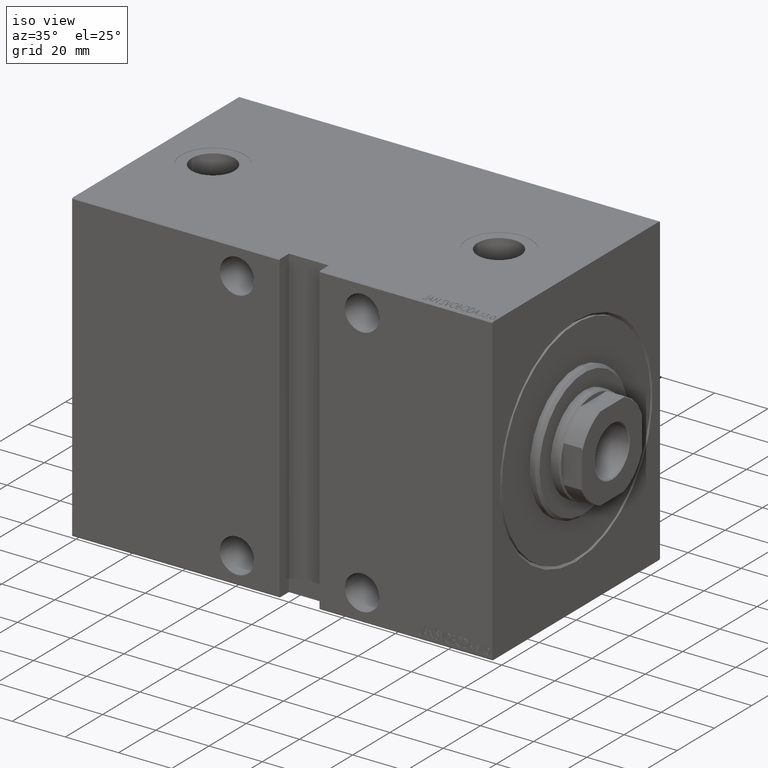
[diagram: clean part render]
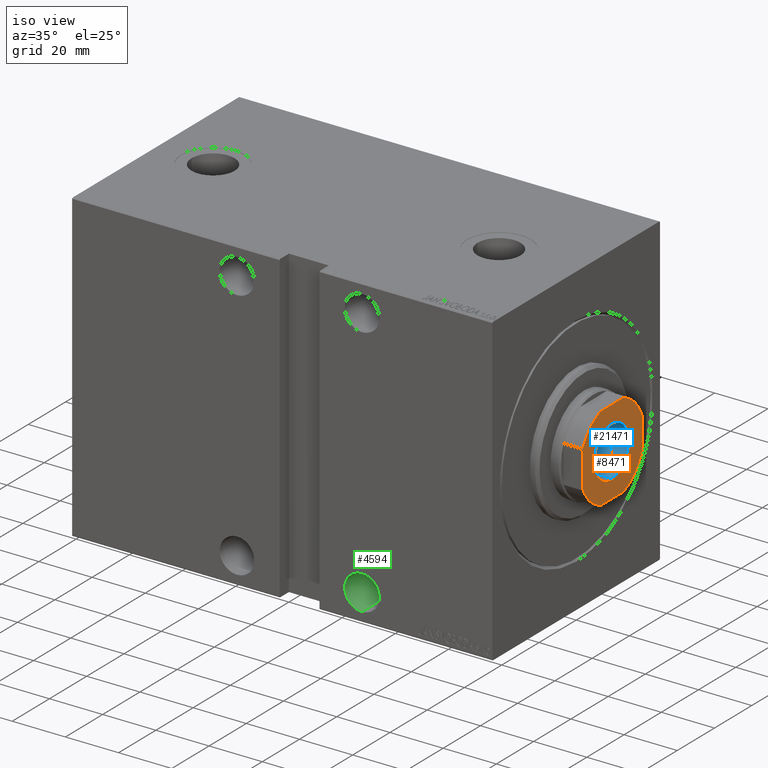
[diagram: same view with three faces highlighted in distinct colors, each labeled with its STEP entity id]
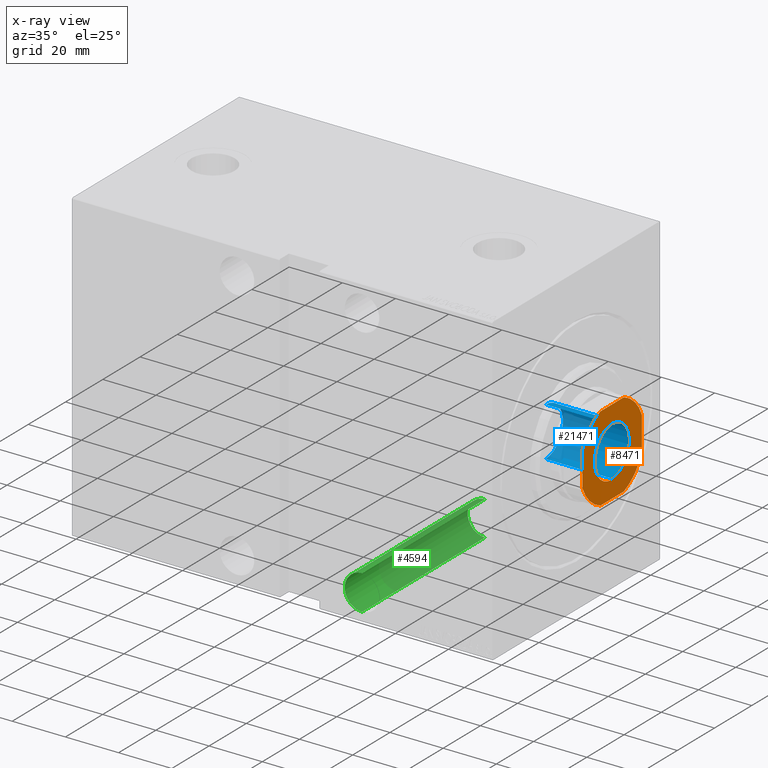
[diagram: x-ray of the same camera — body ghosted, the three highlighted faces saturated]
A machine part, iso view with three faces highlighted in distinct colors.
The next image is the same camera in x-ray (body ghosted, the three faces saturated) — at least one of them is partly hidden behind the body in this view.
Their STEP definitions:

[orange] entity #8471 — the highlighted planar face has unit normal (1, 0, -0).
#259 = LINE ( 'NONE', #13765, #41469 ) ;
#600 = VERTEX_POINT ( 'NONE', #33278 ) ;
#1123 = VECTOR ( 'NONE', #16545, 1000.000000000000000 ) ;
#1313 = CARTESIAN_POINT ( 'NONE',  ( -9.550000000000057554, 1.169537693185729263E-15, 154.0000000000000284 ) ) ;
#1662 = DIRECTION ( 'NONE',  ( -0.000000000000000000, 0.000000000000000000, 1.000000000000000000 ) ) ;
#3144 = ORIENTED_EDGE ( 'NONE', *, *, #3956, .T. ) ;
#3956 = EDGE_CURVE ( 'NONE', #24542, #11498, #24050, .T. ) ;
#4098 = DIRECTION ( 'NONE',  ( 1.084202172485504434E-16, -1.000000000000000000, 0.000000000000000000 ) ) ;
#4100 = VERTEX_POINT ( 'NONE', #39329 ) ;
#4376 = EDGE_CURVE ( 'NONE', #11498, #24542, #38911, .T. ) ;
#4771 = DIRECTION ( 'NONE',  ( 1.000000000000000000, 0.000000000000000000, 0.000000000000000000 ) ) ;
#5475 = EDGE_CURVE ( 'NONE', #25208, #40008, #33985, .T. ) ;
#5571 = EDGE_CURVE ( 'NONE', #40008, #40895, #7847, .T. ) ;
#6075 = ORIENTED_EDGE ( 'NONE', *, *, #5571, .T. ) ;
#6341 = AXIS2_PLACEMENT_3D ( 'NONE', #37473, #17092, #19763 ) ;
#6634 = CARTESIAN_POINT ( 'NONE',  ( -16.00000000000000000, -6.311893535223783047, 154.0000000000000284 ) ) ;
#7511 = ORIENTED_EDGE ( 'NONE', *, *, #4376, .T. ) ;
#7847 = LINE ( 'NONE', #41752, #31139 ) ;
#7855 = AXIS2_PLACEMENT_3D ( 'NONE', #40066, #22779, #33206 ) ;
#8471 = ADVANCED_FACE ( 'NONE', ( #13470, #16576 ), #26755, .T. ) ;
#9680 = CARTESIAN_POINT ( 'NONE',  ( 16.00000000000000000, 16.00000000000000355, 154.0000000000000284 ) ) ;
#11400 = DIRECTION ( 'NONE',  ( -1.000000000000000000, -1.084202172485504434E-16, -0.000000000000000000 ) ) ;
#11498 = VERTEX_POINT ( 'NONE', #1313 ) ;
#11581 = CARTESIAN_POINT ( 'NONE',  ( -6.311893535223748408, 16.00000000000000000, 154.0000000000000284 ) ) ;
#13227 = DIRECTION ( 'NONE',  ( 1.000000000000000000, 0.000000000000000000, 0.000000000000000000 ) ) ;
#13470 = FACE_BOUND ( 'NONE', #33806, .T. ) ;
#13765 = CARTESIAN_POINT ( 'NONE',  ( -15.99999999999999645, -16.00000000000000000, 154.0000000000000284 ) ) ;
#14339 = VERTEX_POINT ( 'NONE', #6634 ) ;
#14482 = CARTESIAN_POINT ( 'NONE',  ( 0.000000000000000000, 0.000000000000000000, 154.0000000000000284 ) ) ;
#14697 = CIRCLE ( 'NONE', #39457, 17.19999999999999218 ) ;
#14719 = DIRECTION ( 'NONE',  ( -0.000000000000000000, 0.000000000000000000, 1.000000000000000000 ) ) ;
#15593 = CARTESIAN_POINT ( 'NONE',  ( 0.000000000000000000, 0.000000000000000000, 154.0000000000000284 ) ) ;
#16115 = CIRCLE ( 'NONE', #18947, 17.19999999999997797 ) ;
#16545 = DIRECTION ( 'NONE',  ( -3.252606517456513302E-16, 1.000000000000000000, -0.000000000000000000 ) ) ;
#16576 = FACE_OUTER_BOUND ( 'NONE', #35273, .T. ) ;
#17092 = DIRECTION ( 'NONE',  ( 0.000000000000000000, -0.000000000000000000, -1.000000000000000000 ) ) ;
#17762 = ORIENTED_EDGE ( 'NONE', *, *, #38035, .T. ) ;
#18039 = DIRECTION ( 'NONE',  ( 1.000000000000000000, 0.000000000000000000, 0.000000000000000000 ) ) ;
#18242 = CARTESIAN_POINT ( 'NONE',  ( 9.550000000000057554, 0.000000000000000000, 154.0000000000000284 ) ) ;
#18561 = VERTEX_POINT ( 'NONE', #32071 ) ;
#18947 = AXIS2_PLACEMENT_3D ( 'NONE', #42370, #43020, #32616 ) ;
#19763 = DIRECTION ( 'NONE',  ( 1.000000000000000000, 0.000000000000000000, 0.000000000000000000 ) ) ;
#19870 = LINE ( 'NONE', #9680, #1123 ) ;
#21704 = ORIENTED_EDGE ( 'NONE', *, *, #5475, .T. ) ;
#22779 = DIRECTION ( 'NONE',  ( -0.000000000000000000, 0.000000000000000000, 1.000000000000000000 ) ) ;
#24050 = CIRCLE ( 'NONE', #37495, 9.550000000000057554 ) ;
#24216 = EDGE_CURVE ( 'NONE', #4100, #25208, #19870, .T. ) ;
#24542 = VERTEX_POINT ( 'NONE', #18242 ) ;
#25136 = CARTESIAN_POINT ( 'NONE',  ( -16.00000000000000000, 16.00000000000000000, 154.0000000000000284 ) ) ;
#25208 = VERTEX_POINT ( 'NONE', #36283 ) ;
#26290 = ORIENTED_EDGE ( 'NONE', *, *, #43134, .T. ) ;
#26755 = PLANE ( 'NONE',  #7855 ) ;
#27454 = ORIENTED_EDGE ( 'NONE', *, *, #24216, .T. ) ;
#29875 = EDGE_CURVE ( 'NONE', #14339, #32172, #14697, .T. ) ;
#30114 = EDGE_CURVE ( 'NONE', #32172, #600, #259, .T. ) ;
#30592 = ORIENTED_EDGE ( 'NONE', *, *, #34284, .T. ) ;
#31064 = CARTESIAN_POINT ( 'NONE',  ( 6.311893535223545015, 16.00000000000000355, 154.0000000000000284 ) ) ;
#31139 = VECTOR ( 'NONE', #11400, 1000.000000000000000 ) ;
#31152 = DIRECTION ( 'NONE',  ( 0.000000000000000000, -0.000000000000000000, -1.000000000000000000 ) ) ;
#31758 = DIRECTION ( 'NONE',  ( -0.000000000000000000, 0.000000000000000000, 1.000000000000000000 ) ) ;
#32014 = CARTESIAN_POINT ( 'NONE',  ( 0.000000000000000000, 0.000000000000000000, 154.0000000000000284 ) ) ;
#32071 = CARTESIAN_POINT ( 'NONE',  ( -16.00000000000000000, 6.311893535223752849, 154.0000000000000284 ) ) ;
#32172 = VERTEX_POINT ( 'NONE', #38043 ) ;
#32568 = AXIS2_PLACEMENT_3D ( 'NONE', #15593, #14719, #18039 ) ;
#32616 = DIRECTION ( 'NONE',  ( 1.000000000000000000, 0.000000000000000000, 0.000000000000000000 ) ) ;
#33206 = DIRECTION ( 'NONE',  ( 1.000000000000000000, 0.000000000000000000, 0.000000000000000000 ) ) ;
#33278 = CARTESIAN_POINT ( 'NONE',  ( 6.311893535223763507, -16.00000000000000000, 154.0000000000000284 ) ) ;
#33806 = EDGE_LOOP ( 'NONE', ( #3144, #7511 ) ) ;
#33985 = CIRCLE ( 'NONE', #32568, 17.19999999999990692 ) ;
#34284 = EDGE_CURVE ( 'NONE', #40895, #18561, #16115, .T. ) ;
#34440 = LINE ( 'NONE', #25136, #43809 ) ;
#35273 = EDGE_LOOP ( 'NONE', ( #27454, #21704, #6075, #30592, #17762, #40775, #40546, #26290 ) ) ;
#36155 = CIRCLE ( 'NONE', #43207, 17.19999999999998508 ) ;
#36283 = CARTESIAN_POINT ( 'NONE',  ( 16.00000000000000355, 6.311893535223527252, 154.0000000000000284 ) ) ;
#37364 = CARTESIAN_POINT ( 'NONE',  ( 0.000000000000000000, 0.000000000000000000, 154.0000000000000284 ) ) ;
#37473 = CARTESIAN_POINT ( 'NONE',  ( 0.000000000000000000, 0.000000000000000000, 154.0000000000000284 ) ) ;
#37495 = AXIS2_PLACEMENT_3D ( 'NONE', #37364, #31152, #13227 ) ;
#38035 = EDGE_CURVE ( 'NONE', #18561, #14339, #34440, .T. ) ;
#38043 = CARTESIAN_POINT ( 'NONE',  ( -6.311893535223781271, -16.00000000000000000, 154.0000000000000284 ) ) ;
#38631 = DIRECTION ( 'NONE',  ( 1.000000000000000000, 0.000000000000000000, 0.000000000000000000 ) ) ;
#38911 = CIRCLE ( 'NONE', #6341, 9.550000000000057554 ) ;
#39329 = CARTESIAN_POINT ( 'NONE',  ( 16.00000000000000711, -6.311893535223739526, 154.0000000000000284 ) ) ;
#39457 = AXIS2_PLACEMENT_3D ( 'NONE', #14482, #31758, #38631 ) ;
#40008 = VERTEX_POINT ( 'NONE', #31064 ) ;
#40066 = CARTESIAN_POINT ( 'NONE',  ( 0.000000000000000000, 0.000000000000000000, 154.0000000000000284 ) ) ;
#40546 = ORIENTED_EDGE ( 'NONE', *, *, #30114, .T. ) ;
#40775 = ORIENTED_EDGE ( 'NONE', *, *, #29875, .T. ) ;
#40794 = DIRECTION ( 'NONE',  ( 1.000000000000000000, 0.000000000000000000, 0.000000000000000000 ) ) ;
#40895 = VERTEX_POINT ( 'NONE', #11581 ) ;
#41469 = VECTOR ( 'NONE', #40794, 1000.000000000000000 ) ;
#41752 = CARTESIAN_POINT ( 'NONE',  ( -16.00000000000000000, 16.00000000000000000, 154.0000000000000284 ) ) ;
#42370 = CARTESIAN_POINT ( 'NONE',  ( 0.000000000000000000, 0.000000000000000000, 154.0000000000000284 ) ) ;
#43020 = DIRECTION ( 'NONE',  ( -0.000000000000000000, 0.000000000000000000, 1.000000000000000000 ) ) ;
#43134 = EDGE_CURVE ( 'NONE', #600, #4100, #36155, .T. ) ;
#43207 = AXIS2_PLACEMENT_3D ( 'NONE', #32014, #1662, #4771 ) ;
#43809 = VECTOR ( 'NONE', #4098, 1000.000000000000000 ) ;

[blue] entity #21471 — the highlighted cylindrical surface (edge-blend (fillet) strip) has radius 9.25 mm, axis along (1, 0, -0).
#1437 = CIRCLE ( 'NONE', #4959, 9.249999999999994671 ) ;
#2263 = LINE ( 'NONE', #15565, #40555 ) ;
#4327 = EDGE_CURVE ( 'NONE', #7809, #31507, #29297, .T. ) ;
#4959 = AXIS2_PLACEMENT_3D ( 'NONE', #6132, #42913, #9236 ) ;
#5528 = VERTEX_POINT ( 'NONE', #32218 ) ;
#5661 = FACE_OUTER_BOUND ( 'NONE', #19061, .T. ) ;
#5857 = VERTEX_POINT ( 'NONE', #21909 ) ;
#6132 = CARTESIAN_POINT ( 'NONE',  ( 0.000000000000000000, 0.000000000000000000, 153.6999999999999886 ) ) ;
#7809 = VERTEX_POINT ( 'NONE', #22065 ) ;
#8461 = VECTOR ( 'NONE', #38860, 1000.000000000000000 ) ;
#9236 = DIRECTION ( 'NONE',  ( 1.000000000000000000, 0.000000000000000000, 0.000000000000000000 ) ) ;
#11711 = CARTESIAN_POINT ( 'NONE',  ( 0.000000000000000000, 0.000000000000000000, 129.0000000000000284 ) ) ;
#15565 = CARTESIAN_POINT ( 'NONE',  ( -9.249999999999994671, 1.132798289211300909E-15, 154.0000000000000284 ) ) ;
#15635 = CYLINDRICAL_SURFACE ( 'NONE', #27936, 9.249999999999994671 ) ;
#17069 = ORIENTED_EDGE ( 'NONE', *, *, #17273, .F. ) ;
#17273 = EDGE_CURVE ( 'NONE', #5528, #5857, #2263, .T. ) ;
#18945 = DIRECTION ( 'NONE',  ( -0.000000000000000000, -0.000000000000000000, 1.000000000000000000 ) ) ;
#19061 = EDGE_LOOP ( 'NONE', ( #17069, #21912, #37163, #20118 ) ) ;
#20118 = ORIENTED_EDGE ( 'NONE', *, *, #41425, .T. ) ;
#21471 = ADVANCED_FACE ( 'NONE', ( #5661 ), #15635, .F. ) ;
#21909 = CARTESIAN_POINT ( 'NONE',  ( -9.249999999999994671, 1.132798289211300909E-15, 153.6999999999999886 ) ) ;
#21912 = ORIENTED_EDGE ( 'NONE', *, *, #25122, .F. ) ;
#22065 = CARTESIAN_POINT ( 'NONE',  ( 9.249999999999994671, 0.000000000000000000, 129.0000000000000284 ) ) ;
#23058 = AXIS2_PLACEMENT_3D ( 'NONE', #11711, #29194, #42719 ) ;
#25122 = EDGE_CURVE ( 'NONE', #7809, #5528, #40059, .T. ) ;
#25972 = CARTESIAN_POINT ( 'NONE',  ( 9.249999999999994671, 0.000000000000000000, 154.0000000000000284 ) ) ;
#27936 = AXIS2_PLACEMENT_3D ( 'NONE', #29135, #18945, #35570 ) ;
#29135 = CARTESIAN_POINT ( 'NONE',  ( 0.000000000000000000, 0.000000000000000000, 154.0000000000000284 ) ) ;
#29194 = DIRECTION ( 'NONE',  ( -0.000000000000000000, -0.000000000000000000, 1.000000000000000000 ) ) ;
#29297 = LINE ( 'NONE', #25972, #8461 ) ;
#31507 = VERTEX_POINT ( 'NONE', #35629 ) ;
#32218 = CARTESIAN_POINT ( 'NONE',  ( -9.249999999999994671, 1.132798289211300909E-15, 129.0000000000000284 ) ) ;
#35570 = DIRECTION ( 'NONE',  ( 1.000000000000000000, 0.000000000000000000, 0.000000000000000000 ) ) ;
#35629 = CARTESIAN_POINT ( 'NONE',  ( 9.249999999999994671, 0.000000000000000000, 153.6999999999999886 ) ) ;
#37163 = ORIENTED_EDGE ( 'NONE', *, *, #4327, .T. ) ;
#38860 = DIRECTION ( 'NONE',  ( -0.000000000000000000, -0.000000000000000000, 1.000000000000000000 ) ) ;
#40059 = CIRCLE ( 'NONE', #23058, 9.249999999999994671 ) ;
#40555 = VECTOR ( 'NONE', #42597, 1000.000000000000000 ) ;
#41425 = EDGE_CURVE ( 'NONE', #31507, #5857, #1437, .T. ) ;
#42597 = DIRECTION ( 'NONE',  ( -0.000000000000000000, -0.000000000000000000, 1.000000000000000000 ) ) ;
#42719 = DIRECTION ( 'NONE',  ( 1.000000000000000000, 0.000000000000000000, 0.000000000000000000 ) ) ;
#42913 = DIRECTION ( 'NONE',  ( 0.000000000000000000, 0.000000000000000000, 1.000000000000000000 ) ) ;

[green] entity #4594 — the highlighted cylindrical surface (edge-blend (fillet) strip) has radius 6.5 mm, axis along (0, -1, -0).
#1130 = CYLINDRICAL_SURFACE ( 'NONE', #16271, 6.499999999999999112 ) ;
#3627 = AXIS2_PLACEMENT_3D ( 'NONE', #31741, #28408, #38614 ) ;
#4408 = DIRECTION ( 'NONE',  ( -0.000000000000000000, 1.000000000000000000, -0.000000000000000000 ) ) ;
#4594 = ADVANCED_FACE ( 'NONE', ( #31708 ), #1130, .F. ) ;
#6870 = VERTEX_POINT ( 'NONE', #23708 ) ;
#7276 = LINE ( 'NONE', #35782, #20316 ) ;
#7554 = CARTESIAN_POINT ( 'NONE',  ( 48.99999999999997158, -45.00000000000003553, -47.49999999999997868 ) ) ;
#7612 = EDGE_CURVE ( 'NONE', #16047, #17082, #14952, .T. ) ;
#10642 = DIRECTION ( 'NONE',  ( 0.000000000000000000, 1.000000000000000000, 0.000000000000000000 ) ) ;
#12643 = ORIENTED_EDGE ( 'NONE', *, *, #31063, .T. ) ;
#14952 = CIRCLE ( 'NONE', #3627, 6.499999999999999112 ) ;
#15535 = ORIENTED_EDGE ( 'NONE', *, *, #43581, .T. ) ;
#16047 = VERTEX_POINT ( 'NONE', #35111 ) ;
#16271 = AXIS2_PLACEMENT_3D ( 'NONE', #7554, #21724, #37915 ) ;
#17082 = VERTEX_POINT ( 'NONE', #29341 ) ;
#17562 = CARTESIAN_POINT ( 'NONE',  ( 48.99999999999997158, 45.00000000000003553, -53.99999999999997868 ) ) ;
#20316 = VECTOR ( 'NONE', #4408, 1000.000000000000000 ) ;
#21724 = DIRECTION ( 'NONE',  ( -0.000000000000000000, 1.000000000000000000, -0.000000000000000000 ) ) ;
#23708 = CARTESIAN_POINT ( 'NONE',  ( 48.99999999999997158, 45.00000000000003553, -40.99999999999997868 ) ) ;
#24450 = DIRECTION ( 'NONE',  ( -0.000000000000000000, 1.000000000000000000, -0.000000000000000000 ) ) ;
#27468 = CARTESIAN_POINT ( 'NONE',  ( 48.99999999999997158, 45.00000000000003553, -47.49999999999997868 ) ) ;
#28106 = EDGE_CURVE ( 'NONE', #17082, #34078, #7276, .T. ) ;
#28373 = CIRCLE ( 'NONE', #32623, 6.499999999999999112 ) ;
#28408 = DIRECTION ( 'NONE',  ( -0.000000000000000000, 1.000000000000000000, -0.000000000000000000 ) ) ;
#28571 = DIRECTION ( 'NONE',  ( 0.000000000000000000, 0.000000000000000000, 1.000000000000000000 ) ) ;
#29341 = CARTESIAN_POINT ( 'NONE',  ( 48.99999999999997158, -20.99999999999999645, -53.99999999999997868 ) ) ;
#29981 = EDGE_LOOP ( 'NONE', ( #30795, #35374, #12643, #15535 ) ) ;
#30795 = ORIENTED_EDGE ( 'NONE', *, *, #28106, .F. ) ;
#31063 = EDGE_CURVE ( 'NONE', #16047, #6870, #34862, .T. ) ;
#31584 = VECTOR ( 'NONE', #24450, 1000.000000000000000 ) ;
#31708 = FACE_OUTER_BOUND ( 'NONE', #29981, .T. ) ;
#31741 = CARTESIAN_POINT ( 'NONE',  ( 48.99999999999997158, -20.99999999999999645, -47.49999999999997868 ) ) ;
#32623 = AXIS2_PLACEMENT_3D ( 'NONE', #27468, #10642, #28571 ) ;
#34078 = VERTEX_POINT ( 'NONE', #17562 ) ;
#34862 = LINE ( 'NONE', #35080, #31584 ) ;
#35080 = CARTESIAN_POINT ( 'NONE',  ( 48.99999999999997158, -45.00000000000003553, -40.99999999999997868 ) ) ;
#35111 = CARTESIAN_POINT ( 'NONE',  ( 48.99999999999997158, -20.99999999999999645, -40.99999999999997868 ) ) ;
#35374 = ORIENTED_EDGE ( 'NONE', *, *, #7612, .F. ) ;
#35782 = CARTESIAN_POINT ( 'NONE',  ( 48.99999999999997158, -45.00000000000003553, -53.99999999999997868 ) ) ;
#37915 = DIRECTION ( 'NONE',  ( 0.000000000000000000, 0.000000000000000000, 1.000000000000000000 ) ) ;
#38614 = DIRECTION ( 'NONE',  ( 0.000000000000000000, 0.000000000000000000, -1.000000000000000000 ) ) ;
#43581 = EDGE_CURVE ( 'NONE', #6870, #34078, #28373, .T. ) ;